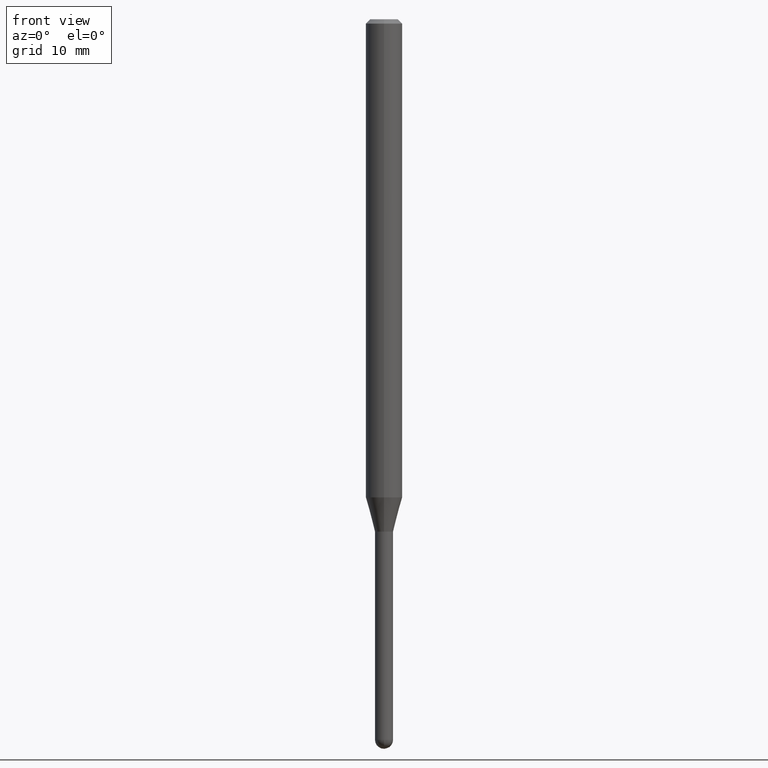
[diagram: clean part render]
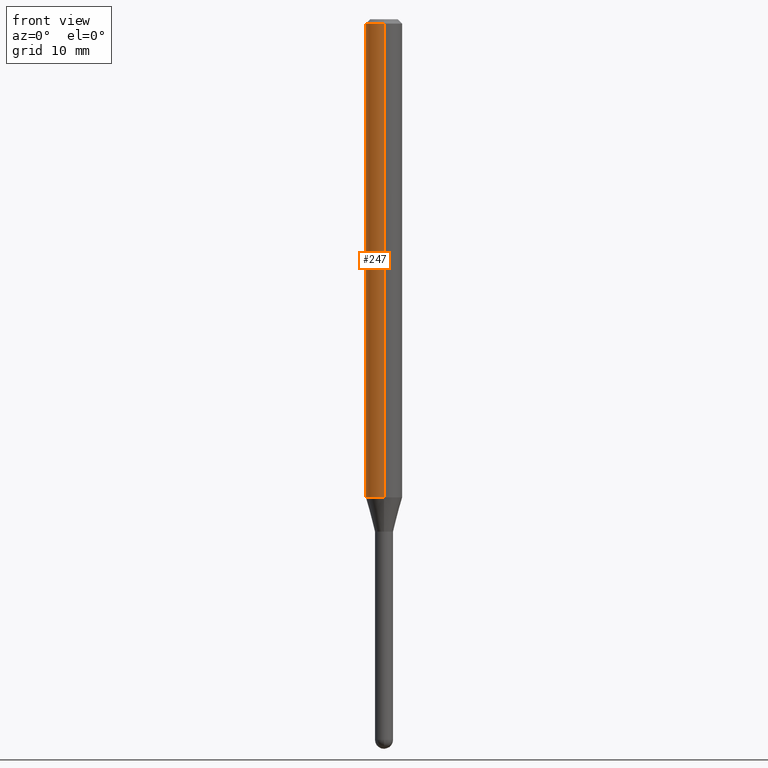
[diagram: same view with one face highlighted and labeled with its STEP entity id]
A machine part, front view. The second image highlights one B-rep face of the part: STEP entity #247.
In plain terms, the highlighted cylindrical surface (edge-blend (fillet) strip) has radius 1.5875 mm, axis along (-0, 0, 1).
Its self-contained STEP definition (entity closure, byte-faithful):
#4 = CARTESIAN_POINT ( 'NONE',  ( 0.000000000000000000, 0.000000000000000000, 0.000000000000000000 ) ) ;
#23 = CIRCLE ( 'NONE', #165, 0.06250000000000000000 ) ;
#41 = CARTESIAN_POINT ( 'NONE',  ( 3.668231953601440230E-31, -5.237180844757110571E-17, -0.01500000000000000812 ) ) ;
#43 = CYLINDRICAL_SURFACE ( 'NONE', #370, 0.06250000000000000000 ) ;
#48 = CARTESIAN_POINT ( 'NONE',  ( -4.364351673553912750E-16, -0.06250000000000005551, -0.01499999999999979128 ) ) ;
#51 = DIRECTION ( 'NONE',  ( -2.445487969067625302E-29, 3.491453896504738030E-15, 1.000000000000000000 ) ) ;
#84 = VERTEX_POINT ( 'NONE', #148 ) ;
#88 = CIRCLE ( 'NONE', #202, 0.06250000000000000000 ) ;
#93 = EDGE_CURVE ( 'NONE', #99, #196, #313, .T. ) ;
#99 = VERTEX_POINT ( 'NONE', #315 ) ;
#110 = DIRECTION ( 'NONE',  ( -2.445487969067625302E-29, 3.491453896504738030E-15, 1.000000000000000000 ) ) ;
#140 = LINE ( 'NONE', #373, #281 ) ;
#147 = EDGE_CURVE ( 'NONE', #84, #196, #23, .T. ) ;
#148 = CARTESIAN_POINT ( 'NONE',  ( 4.440892098501028481E-16, 0.06249999999999995143, -0.01500000000000022669 ) ) ;
#165 = AXIS2_PLACEMENT_3D ( 'NONE', #41, #110, #276 ) ;
#177 = CARTESIAN_POINT ( 'NONE',  ( 4.440892098501024536E-16, 0.06249999999999425460, -1.638440399561583938 ) ) ;
#196 = VERTEX_POINT ( 'NONE', #48 ) ;
#202 = AXIS2_PLACEMENT_3D ( 'NONE', #210, #478, #211 ) ;
#210 = CARTESIAN_POINT ( 'NONE',  ( 4.006786285162205209E-29, -5.720539117240072131E-15, -1.638440399561583716 ) ) ;
#211 = DIRECTION ( 'NONE',  ( -6.982962677686265922E-15, -1.000000000000000000, 4.370956789862821150E-15 ) ) ;
#247 = ADVANCED_FACE ( 'NONE', ( #250 ), #43, .T. ) ;
#250 = FACE_OUTER_BOUND ( 'NONE', #500, .T. ) ;
#263 = EDGE_CURVE ( 'NONE', #463, #99, #88, .T. ) ;
#276 = DIRECTION ( 'NONE',  ( -6.982962677686265922E-15, -1.000000000000000000, 3.483106191921935554E-15 ) ) ;
#281 = VECTOR ( 'NONE', #487, 39.37007874015748143 ) ;
#299 = ORIENTED_EDGE ( 'NONE', *, *, #93, .T. ) ;
#313 = LINE ( 'NONE', #396, #404 ) ;
#315 = CARTESIAN_POINT ( 'NONE',  ( -4.364351673553516840E-16, -0.06250000000000574540, -1.638440399561583494 ) ) ;
#370 = AXIS2_PLACEMENT_3D ( 'NONE', #4, #51, #405 ) ;
#373 = CARTESIAN_POINT ( 'NONE',  ( 4.440892098500625669E-16, 0.06250000000000000000, -2.182158685315461269E-16 ) ) ;
#396 = CARTESIAN_POINT ( 'NONE',  ( -4.364351673553916201E-16, -0.06250000000000000000, 2.182158685315461269E-16 ) ) ;
#404 = VECTOR ( 'NONE', #437, 39.37007874015748143 ) ;
#405 = DIRECTION ( 'NONE',  ( -6.982962677686265922E-15, -1.000000000000000000, 3.491453896504738030E-15 ) ) ;
#427 = ORIENTED_EDGE ( 'NONE', *, *, #147, .F. ) ;
#432 = ORIENTED_EDGE ( 'NONE', *, *, #446, .F. ) ;
#437 = DIRECTION ( 'NONE',  ( -2.445487969067625582E-29, 3.491453896504738030E-15, 1.000000000000000000 ) ) ;
#446 = EDGE_CURVE ( 'NONE', #463, #84, #140, .T. ) ;
#463 = VERTEX_POINT ( 'NONE', #177 ) ;
#478 = DIRECTION ( 'NONE',  ( -2.445487969067625302E-29, 3.491453896504738030E-15, 1.000000000000000000 ) ) ;
#487 = DIRECTION ( 'NONE',  ( -2.445487969067625582E-29, 3.491453896504738030E-15, 1.000000000000000000 ) ) ;
#498 = ORIENTED_EDGE ( 'NONE', *, *, #263, .T. ) ;
#500 = EDGE_LOOP ( 'NONE', ( #432, #498, #299, #427 ) ) ;